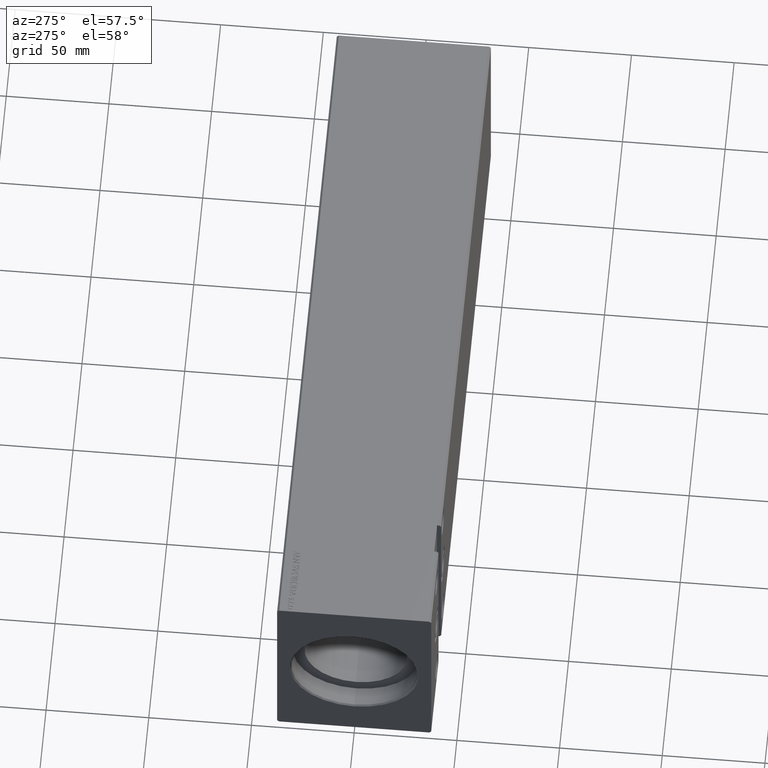
[diagram: clean part render]
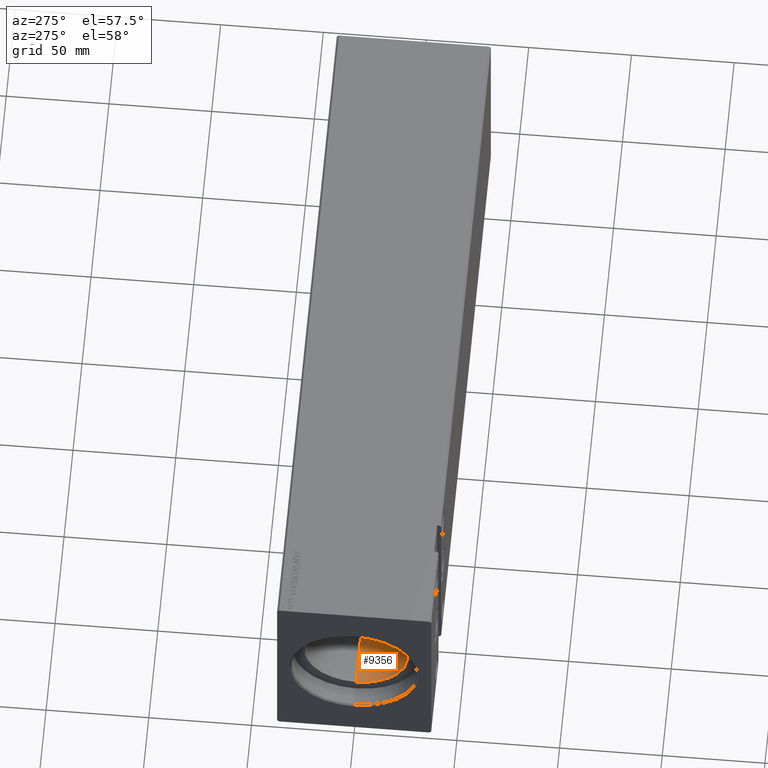
[diagram: same view with one face highlighted and labeled with its STEP entity id]
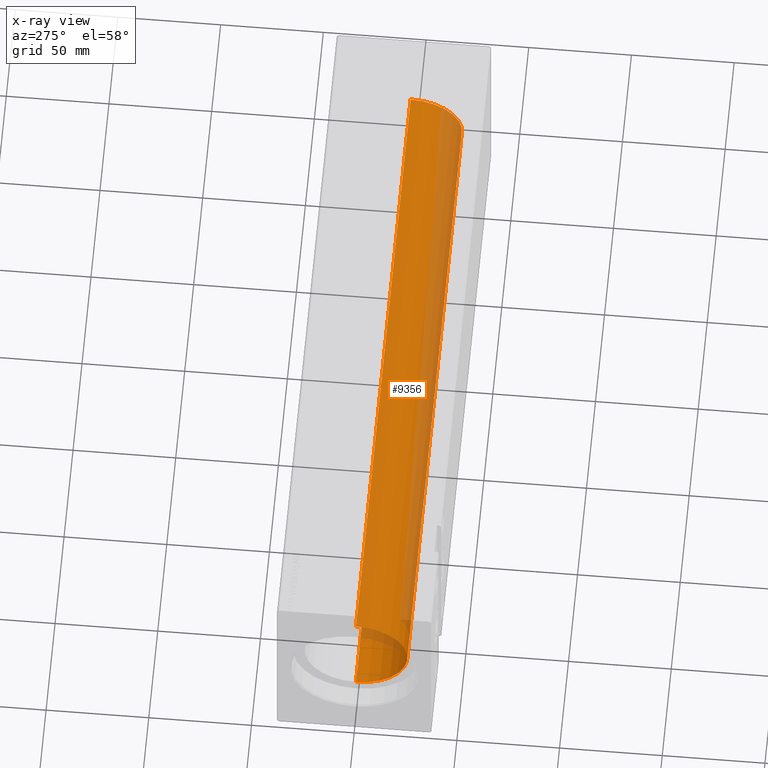
[diagram: x-ray of the same camera — body ghosted, the highlighted face saturated]
A machine part, auxiliary view. The second image highlights one B-rep face of the part: STEP entity #9356.
The next image is the same camera in x-ray: the body ghosted, the highlighted face saturated — about 29% of this face is hidden behind the body in this view.
In plain terms, the highlighted cylindrical surface (partial cylindrical patch) has radius 25 mm, axis along (-1, -0, -0).
Its self-contained STEP definition (entity closure, byte-faithful):
#1503 = CARTESIAN_POINT ( 'NONE',  ( 314.1999999999999886, 0.000000000000000000, 25.00000000000000000 ) ) ;
#2958 = ORIENTED_EDGE ( 'NONE', *, *, #19797, .T. ) ;
#3974 = CYLINDRICAL_SURFACE ( 'NONE', #7925, 25.00000000000000000 ) ;
#4258 = EDGE_CURVE ( 'NONE', #7071, #28249, #29719, .T. ) ;
#4704 = DIRECTION ( 'NONE',  ( -1.000000000000000000, 0.000000000000000000, 0.000000000000000000 ) ) ;
#5075 = ORIENTED_EDGE ( 'NONE', *, *, #4258, .F. ) ;
#6858 = DIRECTION ( 'NONE',  ( 0.000000000000000000, 0.000000000000000000, 1.000000000000000000 ) ) ;
#6950 = DIRECTION ( 'NONE',  ( -1.000000000000000000, 0.000000000000000000, 0.000000000000000000 ) ) ;
#7071 = VERTEX_POINT ( 'NONE', #14305 ) ;
#7301 = CARTESIAN_POINT ( 'NONE',  ( 10.00000000000000888, 3.061616997868383043E-15, -25.00000000000000000 ) ) ;
#7925 = AXIS2_PLACEMENT_3D ( 'NONE', #26005, #19818, #6858 ) ;
#8526 = CIRCLE ( 'NONE', #30247, 25.00000000000000000 ) ;
#9356 = ADVANCED_FACE ( 'NONE', ( #23332 ), #3974, .F. ) ;
#12112 = ORIENTED_EDGE ( 'NONE', *, *, #24425, .F. ) ;
#12910 = CIRCLE ( 'NONE', #29334, 25.00000000000000000 ) ;
#13400 = EDGE_LOOP ( 'NONE', ( #12112, #2958, #15006, #5075 ) ) ;
#14066 = DIRECTION ( 'NONE',  ( -1.000000000000000000, -0.000000000000000000, -0.000000000000000000 ) ) ;
#14175 = DIRECTION ( 'NONE',  ( 0.000000000000000000, 0.000000000000000000, 1.000000000000000000 ) ) ;
#14305 = CARTESIAN_POINT ( 'NONE',  ( 314.1999999999999886, 0.000000000000000000, 25.00000000000000000 ) ) ;
#14627 = LINE ( 'NONE', #14833, #38453 ) ;
#14833 = CARTESIAN_POINT ( 'NONE',  ( 314.1999999999999886, 3.061616997868383043E-15, -25.00000000000000000 ) ) ;
#15006 = ORIENTED_EDGE ( 'NONE', *, *, #29387, .T. ) ;
#15704 = CARTESIAN_POINT ( 'NONE',  ( 314.1999999999999886, 3.061616997868383043E-15, -25.00000000000000000 ) ) ;
#19105 = DIRECTION ( 'NONE',  ( 0.000000000000000000, 0.000000000000000000, 1.000000000000000000 ) ) ;
#19797 = EDGE_CURVE ( 'NONE', #20761, #36397, #14627, .T. ) ;
#19818 = DIRECTION ( 'NONE',  ( -1.000000000000000000, -0.000000000000000000, -0.000000000000000000 ) ) ;
#20079 = CARTESIAN_POINT ( 'NONE',  ( 10.00000000000000888, 0.000000000000000000, 25.00000000000000000 ) ) ;
#20145 = CARTESIAN_POINT ( 'NONE',  ( 314.1999999999999886, 0.000000000000000000, 0.000000000000000000 ) ) ;
#20761 = VERTEX_POINT ( 'NONE', #15704 ) ;
#23332 = FACE_OUTER_BOUND ( 'NONE', #13400, .T. ) ;
#24425 = EDGE_CURVE ( 'NONE', #20761, #7071, #12910, .T. ) ;
#24911 = DIRECTION ( 'NONE',  ( -1.000000000000000000, -0.000000000000000000, -0.000000000000000000 ) ) ;
#25095 = CARTESIAN_POINT ( 'NONE',  ( 10.00000000000000888, 0.000000000000000000, 0.000000000000000000 ) ) ;
#26005 = CARTESIAN_POINT ( 'NONE',  ( 314.1999999999999886, 0.000000000000000000, 0.000000000000000000 ) ) ;
#28249 = VERTEX_POINT ( 'NONE', #20079 ) ;
#29334 = AXIS2_PLACEMENT_3D ( 'NONE', #20145, #4704, #14175 ) ;
#29387 = EDGE_CURVE ( 'NONE', #36397, #28249, #8526, .T. ) ;
#29719 = LINE ( 'NONE', #1503, #31559 ) ;
#30247 = AXIS2_PLACEMENT_3D ( 'NONE', #25095, #6950, #19105 ) ;
#31559 = VECTOR ( 'NONE', #14066, 1000.000000000000000 ) ;
#36397 = VERTEX_POINT ( 'NONE', #7301 ) ;
#38453 = VECTOR ( 'NONE', #24911, 1000.000000000000000 ) ;